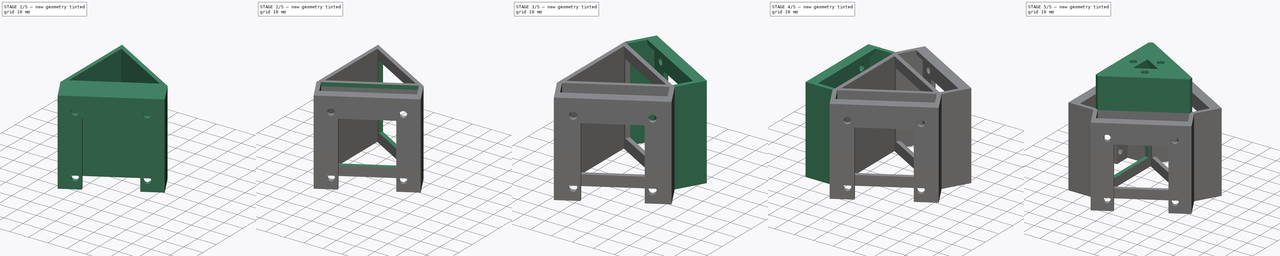
[diagram: build sequence overview — one tinted view per stage of 5, left to right]
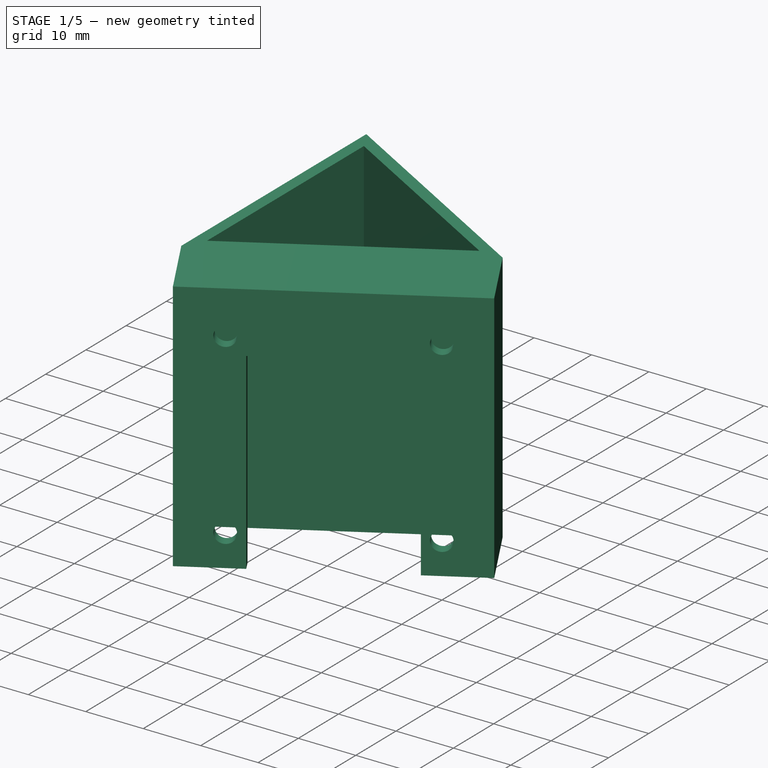
[diagram: stage 1 of 5 — iso view after this stage's code; geometry added in this stage tinted green]
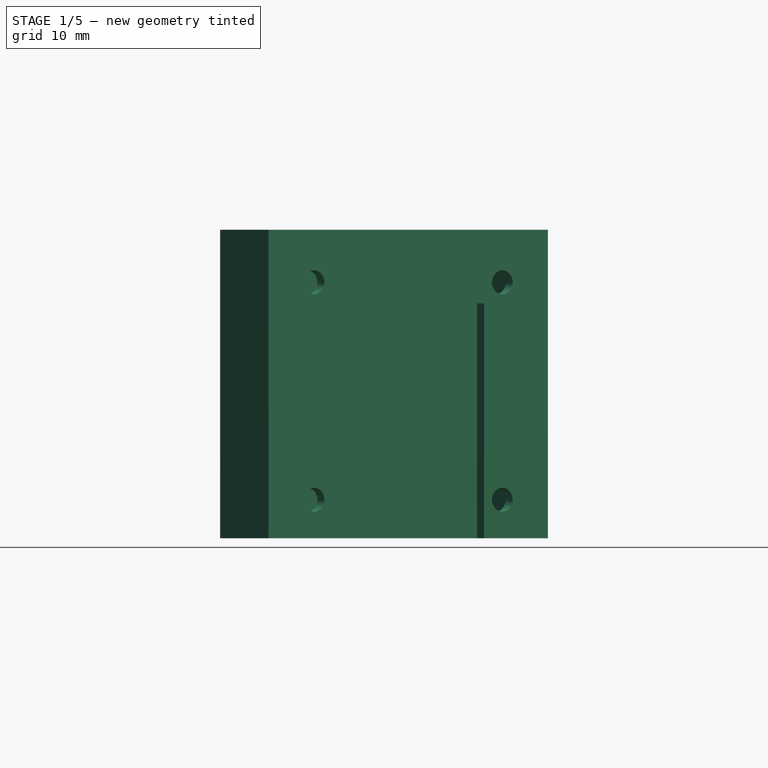
[diagram: stage 1 of 5 — front view after this stage's code; geometry added in this stage tinted green]
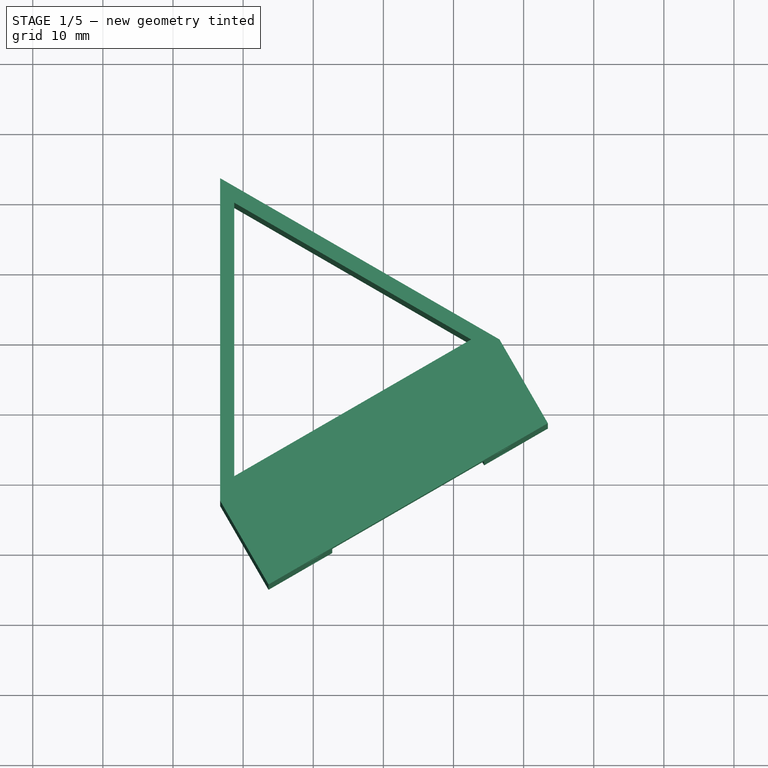
[diagram: stage 1 of 5 — top view after this stage's code; geometry added in this stage tinted green]
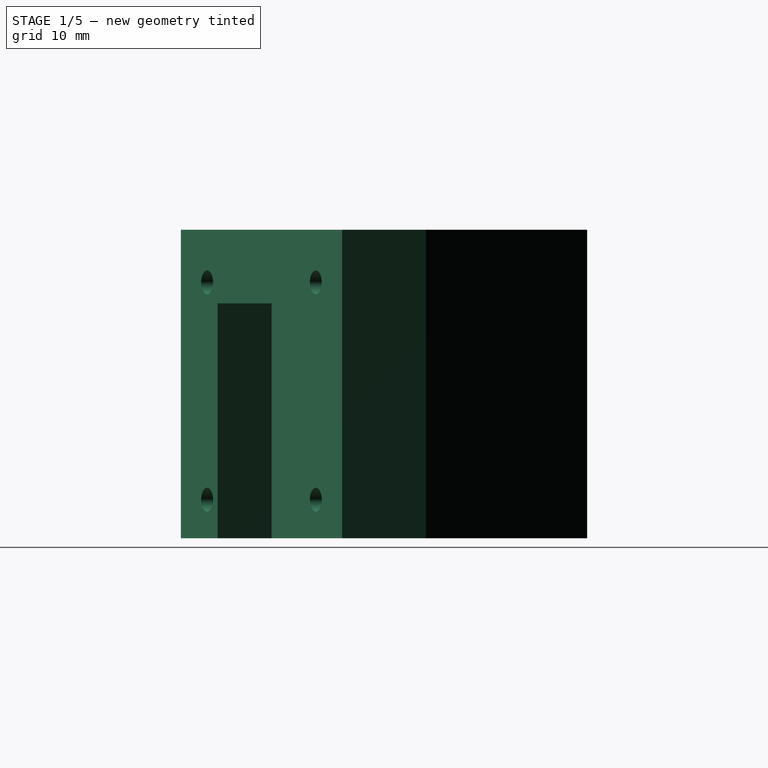
[diagram: stage 1 of 5 — right view after this stage's code; geometry added in this stage tinted green]
FCSTD DOCUMENT  (FreeCAD 0.19R)
Label: core1_3_motor_3
License: All rights reserved
LicenseURL: http://en.wikipedia.org/wiki/All_rights_reserved
objects: Sketcher::SketchObject×15, PartDesign::Pad×9, PartDesign::Pocket×6, PartDesign::Body×1
note: 46 computed .brp shape members not serialized (recipe doc carries the construction recipe); baked Part::Feature solids carry a one-line shape summary decoded from their .brp

FEATURE [Sketcher::SketchObject] Sketch
  FullyConstrained = true
  MapMode = 5
  Support = -> [XY_Plane]
  sketch-geometry (8):
    g0: LineSegment StartX=26.5581 StartY=0 StartZ=0 EndX=-13.2791 EndY=23 EndZ=0
    g1: LineSegment StartX=-13.2791 StartY=23 StartZ=0 EndX=-13.2791 EndY=-23 EndZ=0
    g2: LineSegment StartX=-13.2791 StartY=-23 StartZ=0 EndX=26.5581 EndY=0 EndZ=0
    g3: Circle CenterX=0 CenterY=0 CenterZ=0 NormalX=0 NormalY=0 NormalZ=1 AngleXU=0 Radius=26.5581
    g4: LineSegment StartX=22.5167 StartY=0 StartZ=0 EndX=-11.2583 EndY=19.5 EndZ=0
    g5: LineSegment StartX=-11.2583 StartY=19.5 StartZ=0 EndX=-11.2583 EndY=-19.5 EndZ=0
    g6: LineSegment StartX=-11.2583 StartY=-19.5 StartZ=0 EndX=22.5167 EndY=0 EndZ=0
    g7: Circle CenterX=0 CenterY=0 CenterZ=0 NormalX=0 NormalY=0 NormalZ=1 AngleXU=0 Radius=22.5167
  constraints (22):
    c: Coincident(g0,g1)
    c: Coincident(g1,g2)
    c: Coincident(g2,g0)
    c: Equal(g0,g1)
    c: Equal(g0,g2)
    c: PointOnObject(g0,g3)
    c: PointOnObject(g1,g3)
    c: PointOnObject(g2,g3)
    c: Coincident(g3,g-1)
    c: PointOnObject(g2,g-1)
    c: Distance(g0) = 46
    c: Coincident(g4,g5)
    c: Coincident(g5,g6)
    c: Coincident(g6,g4)
    c: Equal(g4,g5)
    c: Equal(g4,g6)
    c: PointOnObject(g4,g7)
    c: PointOnObject(g5,g7)
    c: PointOnObject(g6,g7)
    c: Coincident(g7,g-1)
    c: PointOnObject(g6,g-1)
    c: Distance(g4) = 39
FEATURE [PartDesign::Pad] Pad
  Direction = (1,1,1)
  Length = 44
  Length2 = 100
  Profile = -> Sketch
  Type = 0
FEATURE [Sketcher::SketchObject] Sketch001
  ExternalGeometry = -> [Pad]
  FullyConstrained = true
  MapMode = 5
  Placement = pos=(6.63953,-11.5,0) rot=(0.935113,0.250563,0.250563;1.63783rad)
  Support = -> [Pad]
  sketch-geometry (8):
    g0: LineSegment StartX=-23 StartY=-2e-16 StartZ=0 EndX=-21 EndY=-2e-16 EndZ=0
    g1: LineSegment StartX=23 StartY=-2e-16 StartZ=0 EndX=23 EndY=44 EndZ=0
    g2: LineSegment StartX=23 StartY=44 StartZ=0 EndX=-23 EndY=44 EndZ=0
    g3: LineSegment StartX=-23 StartY=44 StartZ=0 EndX=-23 EndY=0 EndZ=0
    g4: LineSegment StartX=-21 StartY=-2e-16 StartZ=0 EndX=-21 EndY=42 EndZ=0
    g5: LineSegment StartX=-21 StartY=42 StartZ=0 EndX=21 EndY=42 EndZ=0
    g6: LineSegment StartX=21 StartY=42 StartZ=0 EndX=21 EndY=0 EndZ=0
    g7: LineSegment StartX=21 StartY=0 StartZ=0 EndX=23 EndY=-2e-16 EndZ=0
  constraints (21):
    c: Coincident(g7,g1)
    c: Coincident(g1,g2)
    c: Coincident(g2,g3)
    c: Coincident(g3,g0)
    c: Horizontal(g0)
    c: Horizontal(g2)
    c: Vertical(g1)
    c: Vertical(g3)
    c: Coincident(g0,g-3)
    c: Coincident(g1,g-4)
    c: Vertical(g4)
    c: Coincident(g4,g5)
    c: Horizontal(g5)
    c: Coincident(g5,g6)
    c: Vertical(g6)
    c: Coincident(g0,g4)
    c: Coincident(g7,g6)
    c: Tangent(g0,g7)
    c: Distance(g0,g3) = 2
    c: Distance(g6,g1) = 2
    c: Distance(g5,g2) = 2
FEATURE [PartDesign::Pad] Pad001
  BaseFeature = -> Pad
  Direction = (1,1,1)
  Length = 11.8
  Length2 = 100
  Profile = -> Sketch001
  Type = 0
FEATURE [Sketcher::SketchObject] Sketch002
  ExternalGeometry = -> [Pad001]
  FullyConstrained = true
  MapMode = 5
  Placement = pos=(12.5395,-21.7191,0) rot=(0.935113,0.250563,0.250563;1.63783rad)
  Support = -> [Pad001]
  sketch-geometry (12):
    g0: LineSegment StartX=-23 StartY=0 StartZ=0 EndX=-12.5 EndY=0 EndZ=0
    g1: LineSegment StartX=23 StartY=0 StartZ=0 EndX=23 EndY=44 EndZ=0
    g2: LineSegment StartX=23 StartY=44 StartZ=0 EndX=-23 EndY=44 EndZ=0
    g3: LineSegment StartX=-23 StartY=44 StartZ=0 EndX=-23 EndY=0 EndZ=0
    g4: LineSegment StartX=-12.5 StartY=0 StartZ=0 EndX=-12.5 EndY=33.5 EndZ=0
    g5: LineSegment StartX=-12.5 StartY=33.5 StartZ=0 EndX=12.5 EndY=33.5 EndZ=0
    g6: LineSegment StartX=12.5 StartY=33.5 StartZ=0 EndX=12.5 EndY=0 EndZ=0
    g7: LineSegment StartX=12.5 StartY=0 StartZ=0 EndX=23 EndY=0 EndZ=0
    g8: Circle CenterX=-15.5 CenterY=36.5 CenterZ=0 NormalX=0 NormalY=0 NormalZ=1 AngleXU=0 Radius=1.7
    g9: Circle CenterX=-15.5 CenterY=5.5 CenterZ=0 NormalX=0 NormalY=0 NormalZ=1 AngleXU=0 Radius=1.7
    g10: Circle CenterX=15.5 CenterY=5.5 CenterZ=0 NormalX=0 NormalY=0 NormalZ=1 AngleXU=0 Radius=1.7
    g11: Circle CenterX=15.5 CenterY=36.5 CenterZ=0 NormalX=0 NormalY=0 NormalZ=1 AngleXU=0 Radius=1.7
  constraints (33):
    c: Coincident(g7,g1)
    c: Coincident(g1,g2)
    c: Coincident(g2,g3)
    c: Coincident(g3,g0)
    c: Horizontal(g0)
    c: Horizontal(g2)
    c: Vertical(g1)
    c: Vertical(g3)
    c: Coincident(g0,g-3)
    c: Coincident(g1,g-4)
    c: Vertical(g4)
    c: Coincident(g4,g5)
    c: Horizontal(g5)
    c: Coincident(g5,g6)
    c: Vertical(g6)
    c: Distance(g4,g3) = 10.5
    c: Distance(g6,g1) = 10.5
    c: Distance(g5,g2) = 10.5
    c: Coincident(g0,g4)
    c: Coincident(g7,g6)
    c: Tangent(g0,g7)
    c: Diameter(g8) = 3.4
    c: Diameter(g11) = 3.4
    c: Diameter(g10) = 3.4
    c: Diameter(g9) = 3.4
    c: Distance(g9,g0) = 5.5
    c: Distance(g9,g3) = 7.5
    c: Distance(g10,g7) = 5.5
    c: Distance(g10,g1) = 7.5
    c: Distance(g11,g1) = 7.5
    c: Distance(g11,g2) = 7.5
    c: Distance(g8,g2) = 7.5
    c: Distance(g8,g3) = 7.5
FEATURE [PartDesign::Pad] Pad002
  BaseFeature = -> Pad001
  Direction = (1,1,1)
  Length = 2
  Length2 = 100
  Profile = -> Sketch002
  Type = 0
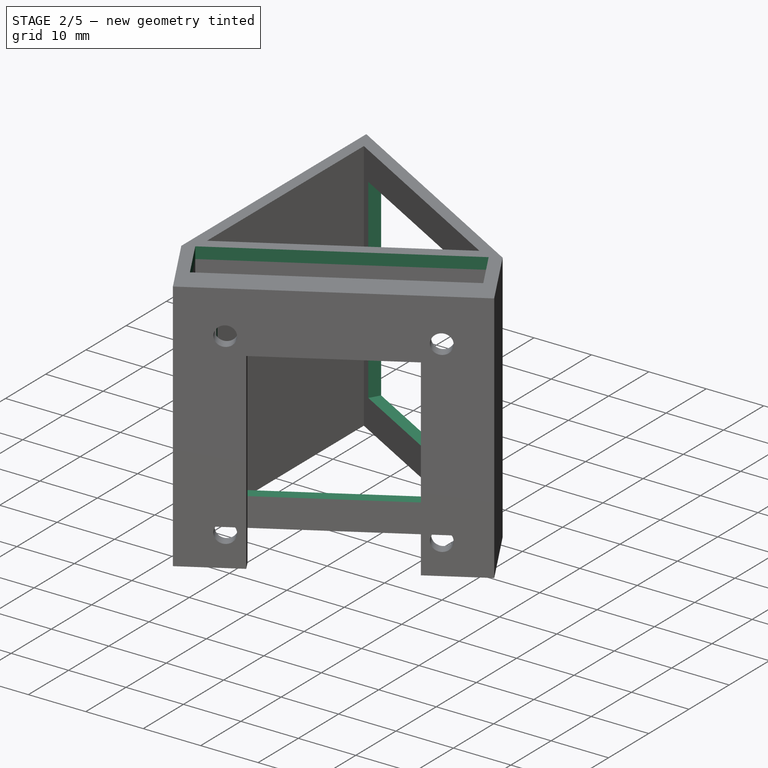
[diagram: stage 2 of 5 — iso view after this stage's code; geometry added in this stage tinted green]
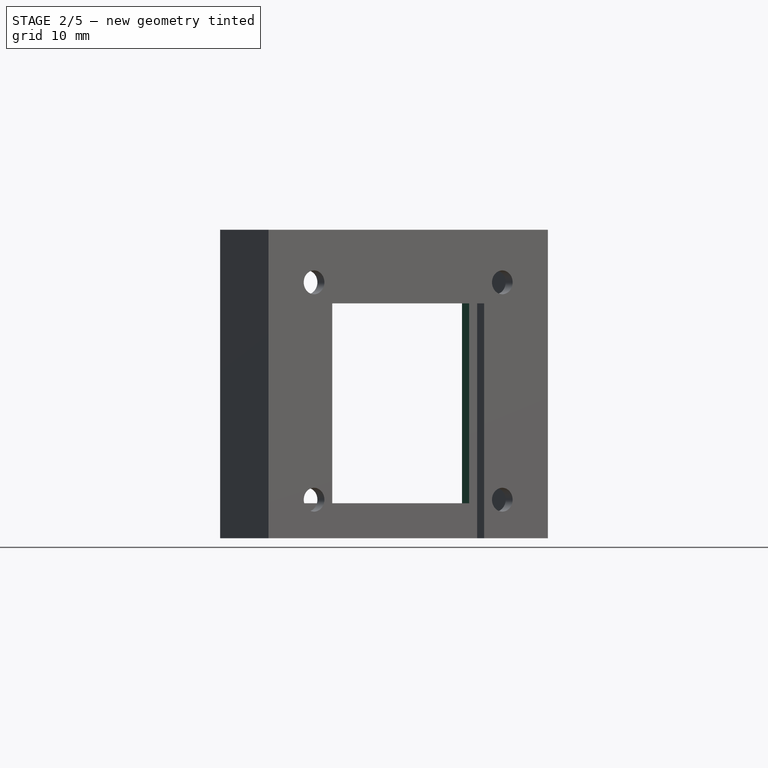
[diagram: stage 2 of 5 — front view after this stage's code; geometry added in this stage tinted green]
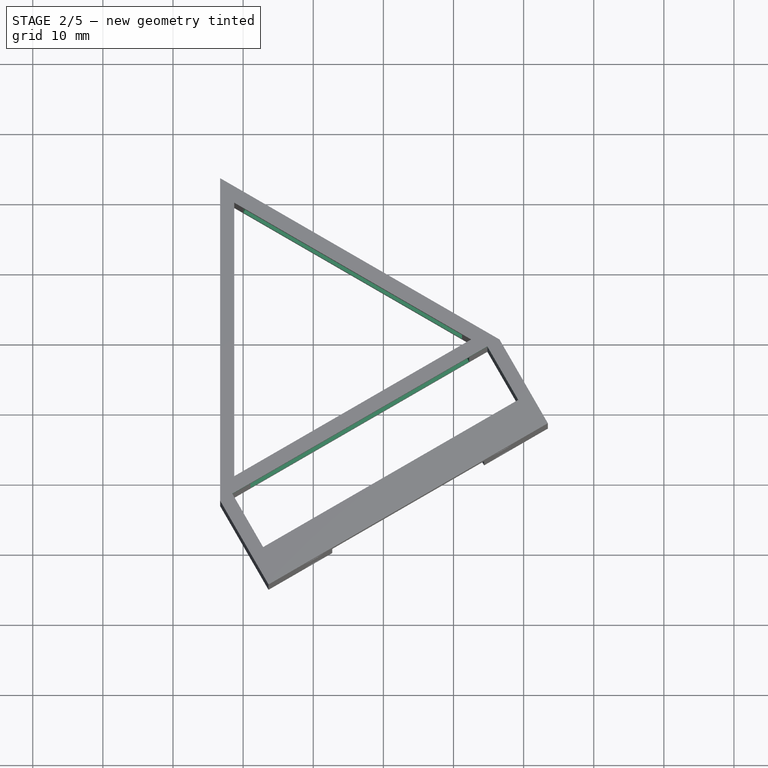
[diagram: stage 2 of 5 — top view after this stage's code; geometry added in this stage tinted green]
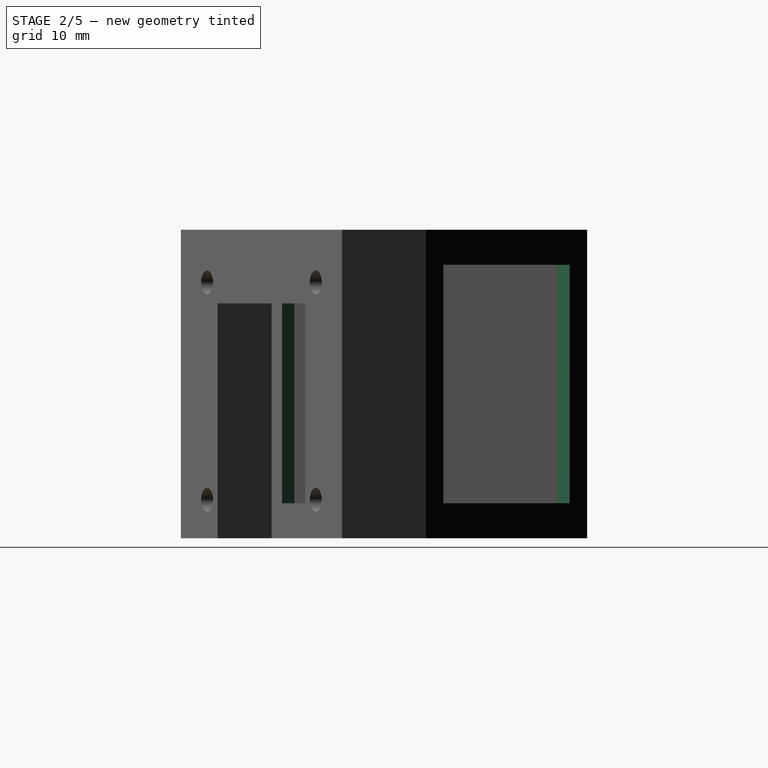
[diagram: stage 2 of 5 — right view after this stage's code; geometry added in this stage tinted green]
FEATURE [Sketcher::SketchObject] Sketch003
  ExternalGeometry = -> [Pad002]
  FullyConstrained = true
  MapMode = 5
  Placement = pos=(-4e-16,5.3e-15,44) rot=(0,0,1;0rad)
  Support = -> [Pad002]
  sketch-geometry (4):
    g0: LineSegment StartX=-11.547 StartY=-22 StartZ=0 EndX=-7.14701 EndY=-29.621 EndZ=0
    g1: LineSegment StartX=-7.14701 StartY=-29.621 StartZ=0 EndX=29.2261 EndY=-8.62102 EndZ=0
    g2: LineSegment StartX=29.2261 StartY=-8.62102 StartZ=0 EndX=24.8261 EndY=-1 EndZ=0
    g3: LineSegment StartX=24.8261 StartY=-1 StartZ=0 EndX=-11.547 EndY=-22 EndZ=0
  constraints (12):
    c: PointOnObject(g0,g-6)
    c: Coincident(g0,g1)
    c: Coincident(g1,g2)
    c: PointOnObject(g2,g-6)
    c: Coincident(g2,g3)
    c: Coincident(g3,g0)
    c: Parallel(g2,g-4)
    c: Parallel(g1,g-5)
    c: Parallel(g0,g-3)
    c: Distance(g2,g-6) = 2
    c: Distance(g0,g-6) = 2
    c: Distance(g2) = 8.8
FEATURE [PartDesign::Pocket] Pocket
  BaseFeature = -> Pad002
  Length = 5
  Length2 = 100
  Profile = -> Sketch003
  Type = 0
FEATURE [Sketcher::SketchObject] Sketch004
  ExternalGeometry = -> [Pocket]
  FullyConstrained = true
  MapMode = 5
  Placement = pos=(6.63953,-11.5,0) rot=(0.935113,0.250563,0.250563;1.63783rad)
  Support = -> [Pocket]
  sketch-geometry (4):
    g0: LineSegment StartX=-18 StartY=39 StartZ=0 EndX=18 EndY=39 EndZ=0
    g1: LineSegment StartX=18 StartY=39 StartZ=0 EndX=18 EndY=5 EndZ=0
    g2: LineSegment StartX=18 StartY=5 StartZ=0 EndX=-18 EndY=5 EndZ=0
    g3: LineSegment StartX=-18 StartY=5 StartZ=0 EndX=-18 EndY=39 EndZ=0
  constraints (12):
    c: Coincident(g0,g1)
    c: Coincident(g1,g2)
    c: Coincident(g2,g3)
    c: Coincident(g3,g0)
    c: Horizontal(g0)
    c: Horizontal(g2)
    c: Vertical(g1)
    c: Vertical(g3)
    c: Distance(g0,g-4) = 5
    c: Distance(g1,g-3) = 5
    c: Distance(g1,g-1) = 5
    c: Distance(g0,g-5) = 5
FEATURE [PartDesign::Pocket] Pocket001
  BaseFeature = -> Pocket
  Length = 3
  Length2 = 100
  Profile = -> Sketch004
  Type = 0
FEATURE [Sketcher::SketchObject] Sketch005
  ExternalGeometry = -> [Pocket001]
  FullyConstrained = true
  MapMode = 5
  Placement = pos=(6.63953,11.5,0) rot=(0.186157,0.694747,0.694747;2.77349rad)
  Support = -> [Pocket001]
  sketch-geometry (4):
    g0: LineSegment StartX=-18 StartY=39 StartZ=0 EndX=18 EndY=39 EndZ=0
    g1: LineSegment StartX=18 StartY=39 StartZ=0 EndX=18 EndY=5 EndZ=0
    g2: LineSegment StartX=18 StartY=5 StartZ=0 EndX=-18 EndY=5 EndZ=0
    g3: LineSegment StartX=-18 StartY=5 StartZ=0 EndX=-18 EndY=39 EndZ=0
  constraints (12):
    c: Coincident(g0,g1)
    c: Coincident(g1,g2)
    c: Coincident(g2,g3)
    c: Coincident(g3,g0)
    c: Horizontal(g0)
    c: Horizontal(g2)
    c: Vertical(g1)
    c: Vertical(g3)
    c: Distance(g0,g-4) = 5
    c: Distance(g0,g-3) = 5
    c: Distance(g1,g-5) = 5
    c: Distance(g1,g-1) = 5
FEATURE [PartDesign::Pocket] Pocket002
  BaseFeature = -> Pocket001
  Length = 4
  Length2 = 100
  Profile = -> Sketch005
  Type = 0
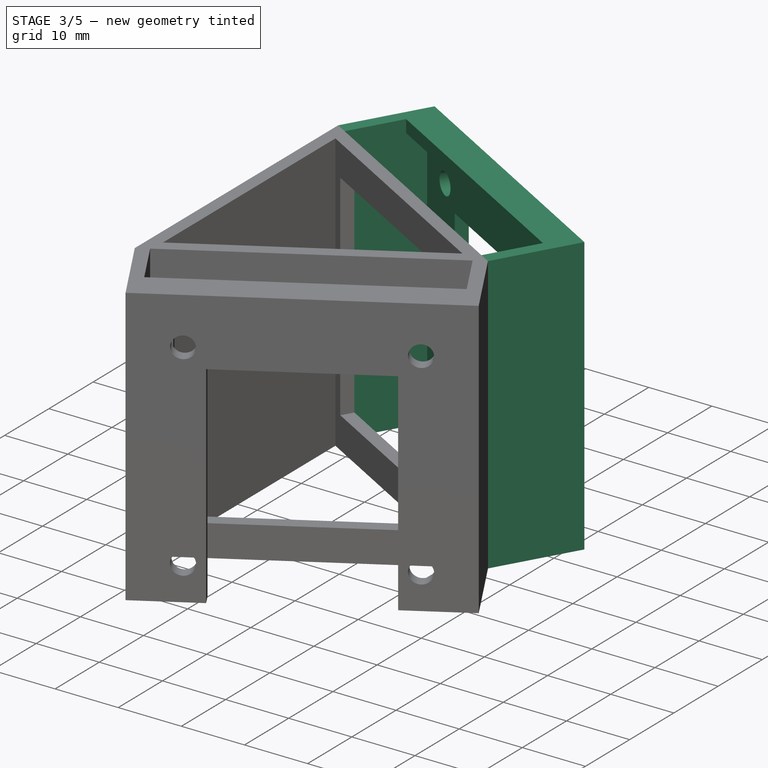
[diagram: stage 3 of 5 — iso view after this stage's code; geometry added in this stage tinted green]
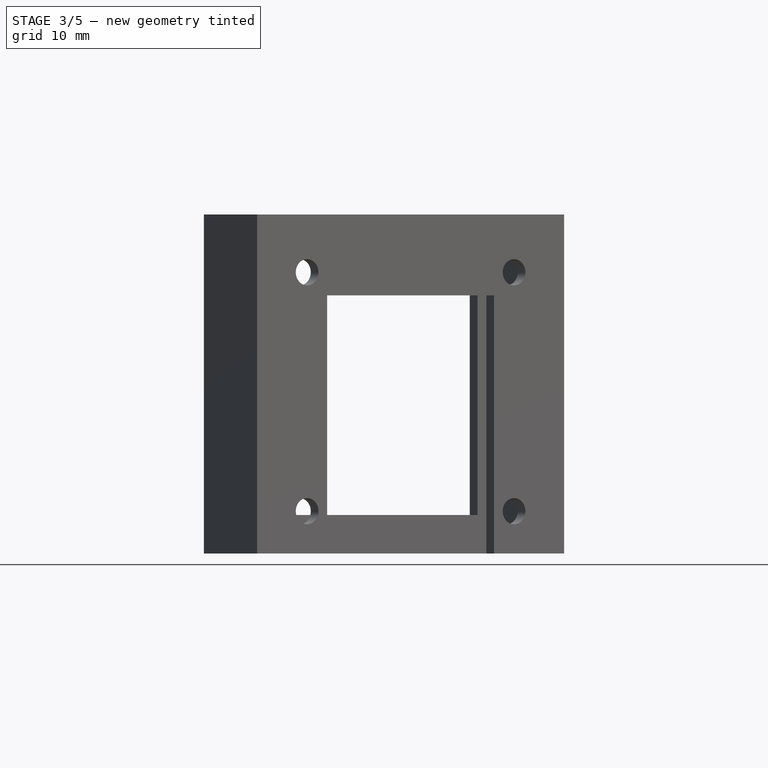
[diagram: stage 3 of 5 — front view after this stage's code; geometry added in this stage tinted green]
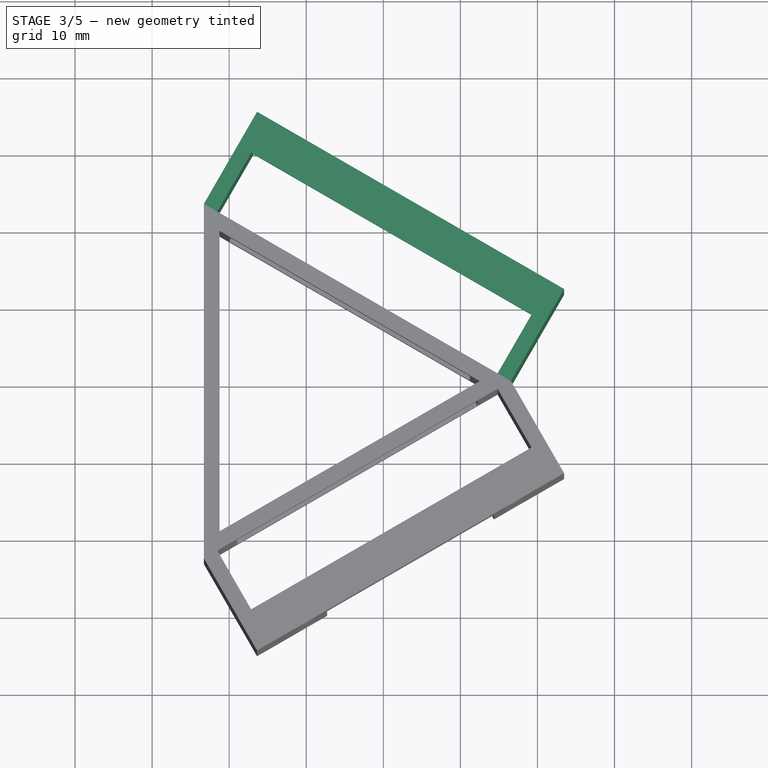
[diagram: stage 3 of 5 — top view after this stage's code; geometry added in this stage tinted green]
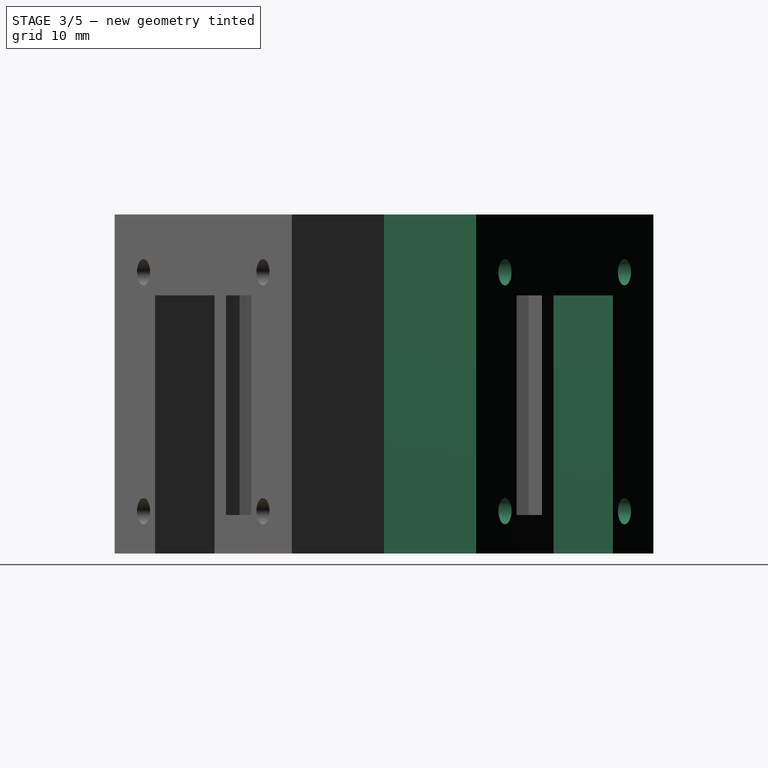
[diagram: stage 3 of 5 — right view after this stage's code; geometry added in this stage tinted green]
FEATURE [Sketcher::SketchObject] Sketch006
  ExternalGeometry = -> [Pocket002]
  FullyConstrained = true
  MapMode = 5
  Placement = pos=(6.63953,11.5,0) rot=(0.186157,0.694747,0.694747;2.77349rad)
  Support = -> [Pocket002]
  sketch-geometry (8):
    g0: LineSegment StartX=-23 StartY=44 StartZ=0 EndX=23 EndY=44 EndZ=0
    g1: LineSegment StartX=23 StartY=44 StartZ=0 EndX=23 EndY=0 EndZ=0
    g2: LineSegment StartX=23 StartY=0 StartZ=0 EndX=21 EndY=0 EndZ=0
    g3: LineSegment StartX=-23 StartY=0 StartZ=0 EndX=-23 EndY=44 EndZ=0
    g4: LineSegment StartX=-21 StartY=0 StartZ=0 EndX=-21 EndY=42 EndZ=0
    g5: LineSegment StartX=-21 StartY=42 StartZ=0 EndX=21 EndY=42 EndZ=0
    g6: LineSegment StartX=21 StartY=42 StartZ=0 EndX=21 EndY=0 EndZ=0
    g7: LineSegment StartX=-21 StartY=0 StartZ=0 EndX=-23 EndY=0 EndZ=0
  constraints (21):
    c: Coincident(g0,g1)
    c: Coincident(g1,g2)
    c: Coincident(g7,g3)
    c: Coincident(g3,g0)
    c: Horizontal(g0)
    c: Horizontal(g2)
    c: Vertical(g1)
    c: Vertical(g3)
    c: Coincident(g0,g-4)
    c: Coincident(g1,g-5)
    c: Vertical(g4)
    c: Coincident(g4,g5)
    c: Horizontal(g5)
    c: Coincident(g5,g6)
    c: Vertical(g6)
    c: Coincident(g2,g6)
    c: Coincident(g7,g4)
    c: Tangent(g2,g7)
    c: Distance(g3,g4) = 2
    c: Distance(g4,g0) = 2
    c: Distance(g2,g1) = 2
FEATURE [PartDesign::Pad] Pad003
  BaseFeature = -> Pocket002
  Direction = (1,1,1)
  Length = 11.8
  Length2 = 100
  Profile = -> Sketch006
  Type = 0
FEATURE [Sketcher::SketchObject] Sketch007
  ExternalGeometry = -> [Pad003]
  FullyConstrained = true
  MapMode = 5
  Placement = pos=(12.5395,21.7191,0) rot=(0.186157,0.694747,0.694747;2.77349rad)
  Support = -> [Pad003]
  sketch-geometry (12):
    g0: LineSegment StartX=-23 StartY=0 StartZ=0 EndX=-12.5 EndY=0 EndZ=0
    g1: LineSegment StartX=23 StartY=0 StartZ=0 EndX=23 EndY=44 EndZ=0
    g2: LineSegment StartX=23 StartY=44 StartZ=0 EndX=-23 EndY=44 EndZ=0
    g3: LineSegment StartX=-23 StartY=44 StartZ=0 EndX=-23 EndY=0 EndZ=0
    g4: LineSegment StartX=-12.5 StartY=0 StartZ=0 EndX=-12.5 EndY=33.5 EndZ=0
    g5: LineSegment StartX=-12.5 StartY=33.5 StartZ=0 EndX=12.5 EndY=33.5 EndZ=0
    g6: LineSegment StartX=12.5 StartY=33.5 StartZ=0 EndX=12.5 EndY=0 EndZ=0
    g7: Circle CenterX=-15.5 CenterY=36.5 CenterZ=0 NormalX=0 NormalY=0 NormalZ=1 AngleXU=0 Radius=1.7
    g8: Circle CenterX=15.5 CenterY=36.5 CenterZ=0 NormalX=0 NormalY=0 NormalZ=1 AngleXU=0 Radius=1.7
    g9: Circle CenterX=15.5 CenterY=5.5 CenterZ=0 NormalX=0 NormalY=0 NormalZ=1 AngleXU=0 Radius=1.7
    g10: Circle CenterX=-15.5 CenterY=5.5 CenterZ=0 NormalX=0 NormalY=0 NormalZ=1 AngleXU=0 Radius=1.7
    g11: LineSegment StartX=12.5 StartY=0 StartZ=0 EndX=23 EndY=0 EndZ=0
  constraints (33):
    c: Coincident(g11,g1)
    c: Coincident(g1,g2)
    c: Coincident(g2,g3)
    c: Coincident(g3,g0)
    c: Horizontal(g0)
    c: Horizontal(g2)
    c: Vertical(g1)
    c: Vertical(g3)
    c: Coincident(g0,g-4)
    c: Coincident(g1,g-5)
    c: Vertical(g4)
    c: Coincident(g4,g5)
    c: Horizontal(g5)
    c: Coincident(g5,g6)
    c: Vertical(g6)
    c: Distance(g4,g3) = 10.5
    c: Distance(g6,g1) = 10.5
    c: Distance(g5,g2) = 10.5
    c: Diameter(g7) = 3.4
    c: Diameter(g8) = 3.4
    c: Diameter(g9) = 3.4
    c: Diameter(g10) = 3.4
    c: Distance(g7,g2) = 7.5
    c: Distance(g7,g3) = 7.5
    c: Distance(g10,g0) = 5.5
    c: Distance(g10,g3) = 7.5
    c: Distance(g9,g0) = 5.5
    c: Distance(g9,g1) = 7.5
    c: Distance(g8,g1) = 7.5
    c: Distance(g8,g2) = 7.5
    c: Coincident(g0,g4)
    c: Coincident(g11,g6)
    c: Tangent(g0,g11)
FEATURE [PartDesign::Pad] Pad004
  BaseFeature = -> Pad003
  Direction = (1,1,1)
  Length = 2
  Length2 = 100
  Profile = -> Sketch007
  Type = 0
FEATURE [Sketcher::SketchObject] Sketch008
  ExternalGeometry = -> [Pad004]
  FullyConstrained = true
  MapMode = 5
  Placement = pos=(0,0,44) rot=(0,0,1;0rad)
  Support = -> [Pad004]
  sketch-geometry (4):
    g0: LineSegment StartX=-11.547 StartY=22 StartZ=0 EndX=-7.14701 EndY=29.621 EndZ=0
    g1: LineSegment StartX=-7.14701 StartY=29.621 StartZ=0 EndX=29.2261 EndY=8.62102 EndZ=0
    g2: LineSegment StartX=29.2261 StartY=8.62102 StartZ=0 EndX=24.8261 EndY=1 EndZ=0
    g3: LineSegment StartX=24.8261 StartY=1 StartZ=0 EndX=-11.547 EndY=22 EndZ=0
  constraints (12):
    c: PointOnObject(g0,g-3)
    c: Coincident(g0,g1)
    c: Coincident(g1,g2)
    c: PointOnObject(g2,g-3)
    c: Coincident(g2,g3)
    c: Coincident(g3,g0)
    c: Parallel(g0,g-4)
    c: Parallel(g1,g-5)
    c: Parallel(g2,g-6)
    c: Distance(g0,g-4) = 2
    c: Distance(g0,g-5) = 3
    c: Distance(g2,g-6) = 2
FEATURE [PartDesign::Pocket] Pocket003
  BaseFeature = -> Pad004
  Length = 2
  Length2 = 100
  Profile = -> Sketch008
  Type = 0
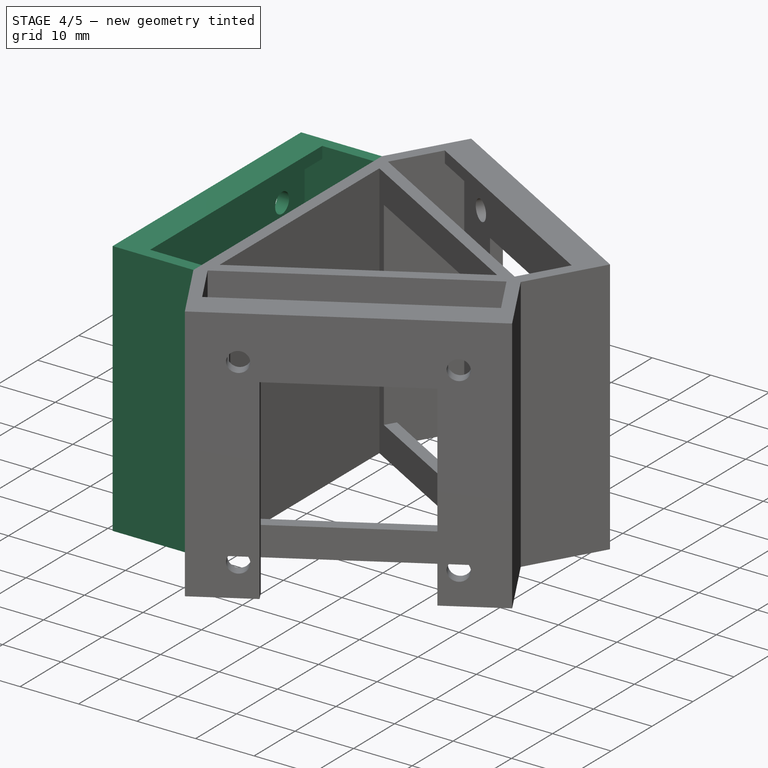
[diagram: stage 4 of 5 — iso view after this stage's code; geometry added in this stage tinted green]
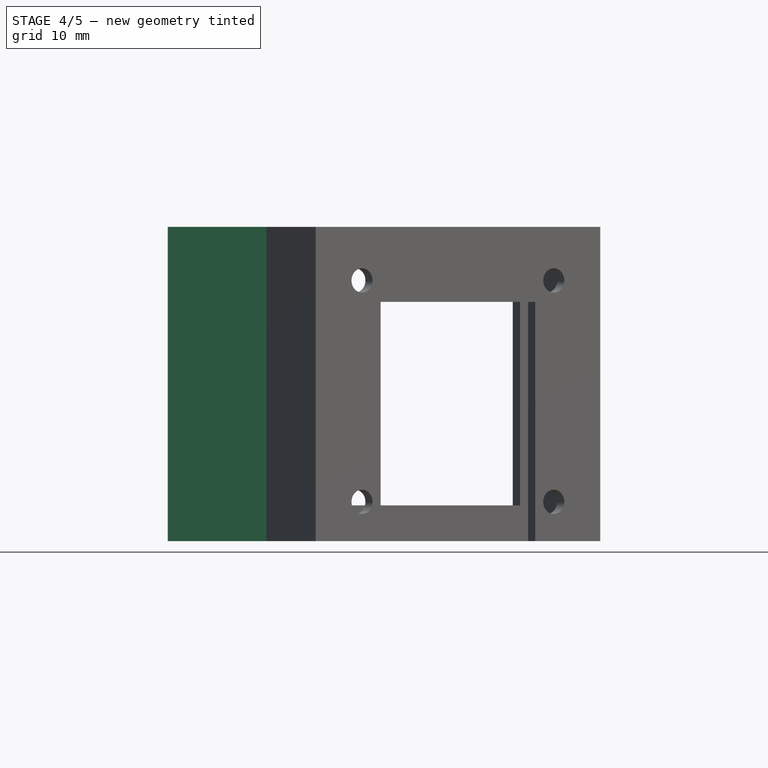
[diagram: stage 4 of 5 — front view after this stage's code; geometry added in this stage tinted green]
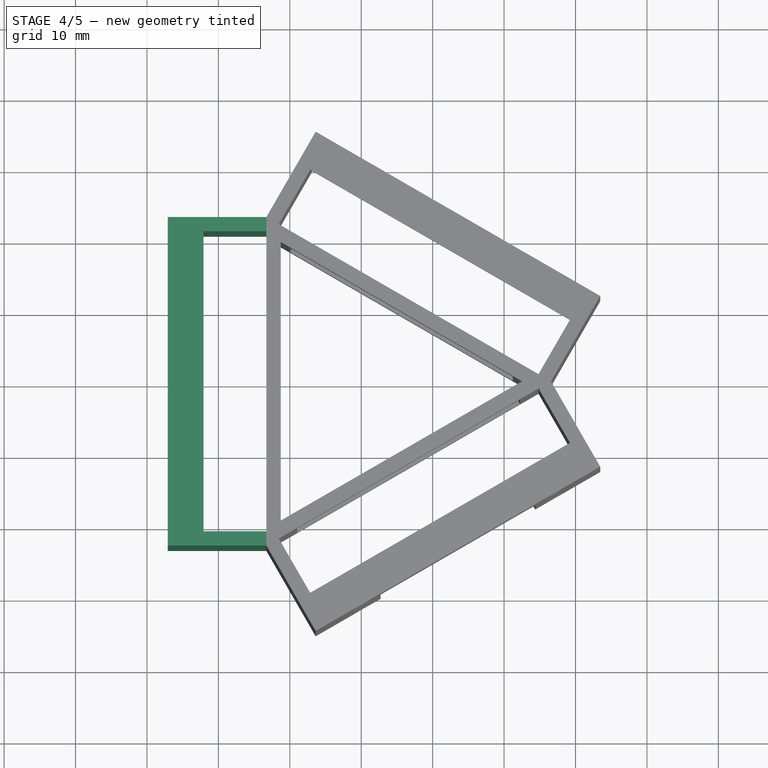
[diagram: stage 4 of 5 — top view after this stage's code; geometry added in this stage tinted green]
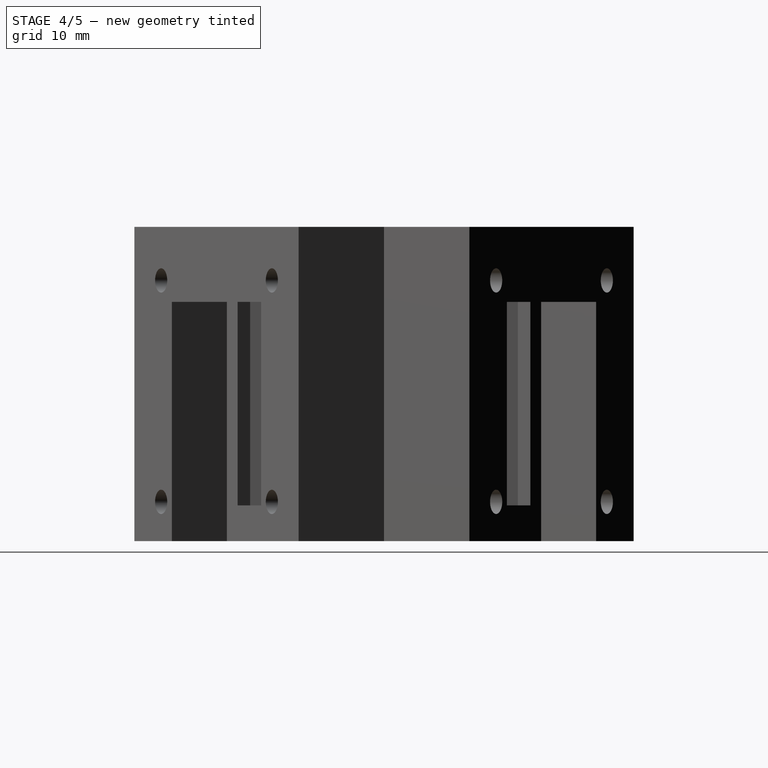
[diagram: stage 4 of 5 — right view after this stage's code; geometry added in this stage tinted green]
FEATURE [Sketcher::SketchObject] Sketch009
  ExternalGeometry = -> [Pocket003]
  FullyConstrained = true
  MapMode = 5
  Placement = pos=(-13.2791,-1.02666e-11,0) rot=(0.57735,-0.57735,-0.57735;2.0944rad)
  Support = -> [Pocket003]
  sketch-geometry (8):
    g0: LineSegment StartX=-23 StartY=0 StartZ=0 EndX=-21 EndY=0 EndZ=0
    g1: LineSegment StartX=23 StartY=0 StartZ=0 EndX=23 EndY=44 EndZ=0
    g2: LineSegment StartX=23 StartY=44 StartZ=0 EndX=-23 EndY=44 EndZ=0
    g3: LineSegment StartX=-23 StartY=44 StartZ=0 EndX=-23 EndY=0 EndZ=0
    g4: LineSegment StartX=-21 StartY=0 StartZ=0 EndX=-21 EndY=42 EndZ=0
    g5: LineSegment StartX=-21 StartY=42 StartZ=0 EndX=21 EndY=42 EndZ=0
    g6: LineSegment StartX=21 StartY=42 StartZ=0 EndX=21 EndY=0 EndZ=0
    g7: LineSegment StartX=21 StartY=0 StartZ=0 EndX=23 EndY=0 EndZ=0
  constraints (21):
    c: Coincident(g7,g1)
    c: Coincident(g1,g2)
    c: Coincident(g2,g3)
    c: Coincident(g3,g0)
    c: Horizontal(g0)
    c: Horizontal(g2)
    c: Vertical(g1)
    c: Vertical(g3)
    c: Coincident(g0,g-3)
    c: Coincident(g1,g-5)
    c: Vertical(g4)
    c: Coincident(g4,g5)
    c: Horizontal(g5)
    c: Coincident(g5,g6)
    c: Vertical(g6)
    c: Coincident(g0,g4)
    c: Coincident(g7,g6)
    c: Tangent(g0,g7)
    c: Distance(g0,g3) = 2
    c: Distance(g4,g2) = 2
    c: Distance(g6,g1) = 2
FEATURE [PartDesign::Pad] Pad005
  BaseFeature = -> Pocket003
  Direction = (1,1,1)
  Length = 11.8
  Length2 = 100
  Profile = -> Sketch009
  Type = 0
FEATURE [Sketcher::SketchObject] Sketch010
  ExternalGeometry = -> [Pad005]
  FullyConstrained = true
  MapMode = 5
  Placement = pos=(-25.0791,-1.93901e-11,0) rot=(0.57735,-0.57735,-0.57735;2.0944rad)
  Support = -> [Pad005]
  sketch-geometry (12):
    g0: LineSegment StartX=-23 StartY=0 StartZ=0 EndX=-12.5 EndY=0 EndZ=0
    g1: LineSegment StartX=23 StartY=0 StartZ=0 EndX=23 EndY=44 EndZ=0
    g2: LineSegment StartX=23 StartY=44 StartZ=0 EndX=-23 EndY=44 EndZ=0
    g3: LineSegment StartX=-23 StartY=44 StartZ=0 EndX=-23 EndY=0 EndZ=0
    g4: LineSegment StartX=-12.5 StartY=0 StartZ=0 EndX=-12.5 EndY=33.5 EndZ=0
    g5: LineSegment StartX=-12.5 StartY=33.5 StartZ=0 EndX=12.5 EndY=33.5 EndZ=0
    g6: LineSegment StartX=12.5 StartY=33.5 StartZ=0 EndX=12.5 EndY=0 EndZ=0
    g7: LineSegment StartX=12.5 StartY=0 StartZ=0 EndX=23 EndY=0 EndZ=0
    g8: Circle CenterX=-15.5 CenterY=5.5 CenterZ=0 NormalX=0 NormalY=0 NormalZ=1 AngleXU=0 Radius=1.7
    g9: Circle CenterX=-15.5 CenterY=36.5 CenterZ=0 NormalX=0 NormalY=0 NormalZ=1 AngleXU=0 Radius=1.7
    g10: Circle CenterX=15.5 CenterY=36.5 CenterZ=0 NormalX=0 NormalY=0 NormalZ=1 AngleXU=0 Radius=1.7
    g11: Circle CenterX=15.5 CenterY=5.5 CenterZ=0 NormalX=0 NormalY=0 NormalZ=1 AngleXU=0 Radius=1.7
  constraints (33):
    c: Coincident(g7,g1)
    c: Coincident(g1,g2)
    c: Coincident(g2,g3)
    c: Coincident(g3,g0)
    c: Horizontal(g0)
    c: Horizontal(g2)
    c: Vertical(g1)
    c: Vertical(g3)
    c: Coincident(g0,g-3)
    c: Coincident(g1,g-5)
    c: Vertical(g4)
    c: Coincident(g4,g5)
    c: Horizontal(g5)
    c: Coincident(g5,g6)
    c: Vertical(g6)
    c: Coincident(g0,g4)
    c: Coincident(g7,g6)
    c: Tangent(g0,g7)
    c: Distance(g0,g3) = 10.5
    c: Distance(g6,g1) = 10.5
    c: Distance(g5,g2) = 10.5
    c: Diameter(g9) = 3.4
    c: Diameter(g8) = 3.4
    c: Diameter(g11) = 3.4
    c: Diameter(g10) = 3.4
    c: Distance(g8,g0) = 5.5
    c: Distance(g11,g7) = 5.5
    c: Distance(g11,g1) = 7.5
    c: Distance(g10,g1) = 7.5
    c: Distance(g10,g2) = 7.5
    c: Distance(g9,g2) = 7.5
    c: Distance(g9,g3) = 7.5
    c: Distance(g8,g3) = 7.5
FEATURE [PartDesign::Pad] Pad006
  BaseFeature = -> Pad005
  Direction = (1,1,1)
  Length = 2
  Length2 = 100
  Profile = -> Sketch010
  Type = 0
FEATURE [Sketcher::SketchObject] Sketch011
  ExternalGeometry = -> [Pad006]
  FullyConstrained = true
  MapMode = 5
  Placement = pos=(0,0,44) rot=(0,0,1;0rad)
  Support = -> [Pad006]
  sketch-geometry (4):
    g0: LineSegment StartX=-13.2791 StartY=-21 StartZ=0 EndX=-22.0791 EndY=-21 EndZ=0
    g1: LineSegment StartX=-22.0791 StartY=-21 StartZ=0 EndX=-22.0791 EndY=21 EndZ=0
    g2: LineSegment StartX=-22.0791 StartY=21 StartZ=0 EndX=-13.2791 EndY=21 EndZ=0
    g3: LineSegment StartX=-13.2791 StartY=-21 StartZ=0 EndX=-13.2791 EndY=21 EndZ=0
  constraints (12):
    c: PointOnObject(g0,g-4)
    c: Horizontal(g0)
    c: Coincident(g0,g1)
    c: Vertical(g1)
    c: Coincident(g1,g2)
    c: PointOnObject(g2,g-4)
    c: Horizontal(g2)
    c: Distance(g2,g-3) = 2
    c: Distance(g0,g-6) = 2
    c: Distance(g0,g-5) = 3
    c: Coincident(g3,g0)
    c: Coincident(g3,g2)
FEATURE [PartDesign::Pocket] Pocket004
  BaseFeature = -> Pad006
  Length = 2
  Length2 = 100
  Profile = -> Sketch011
  Type = 0
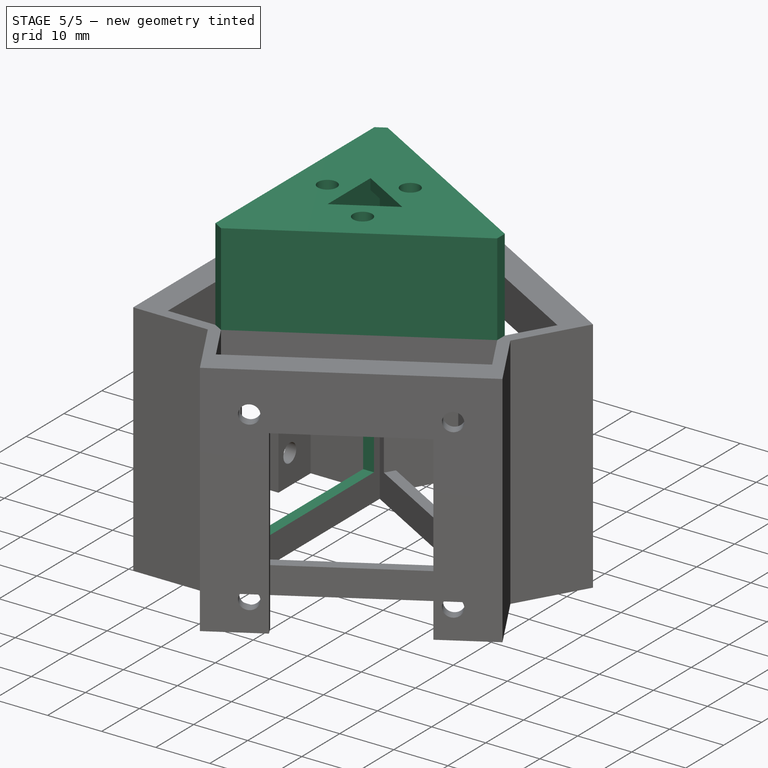
[diagram: stage 5 of 5 — iso view after this stage's code; geometry added in this stage tinted green]
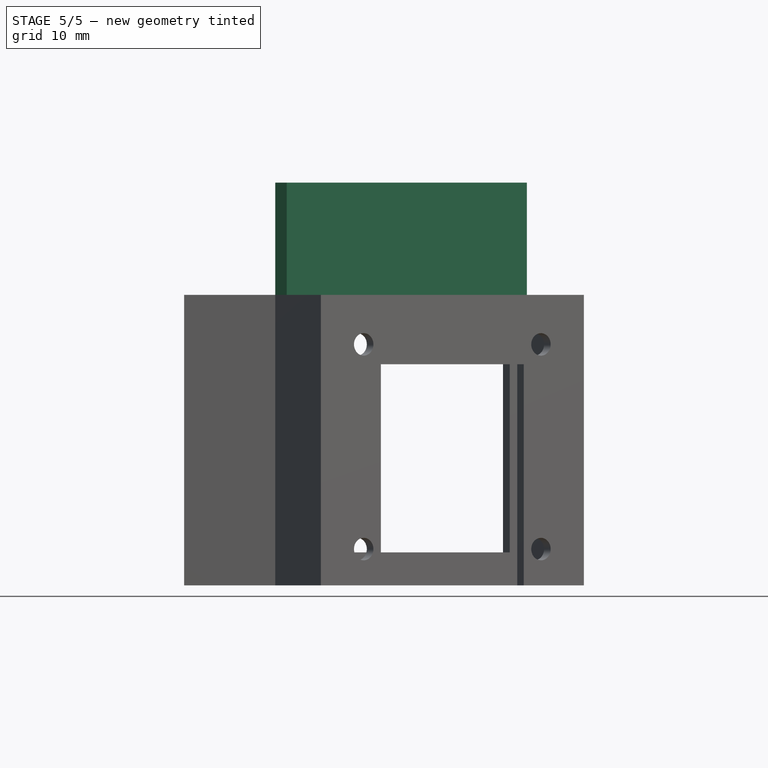
[diagram: stage 5 of 5 — front view after this stage's code; geometry added in this stage tinted green]
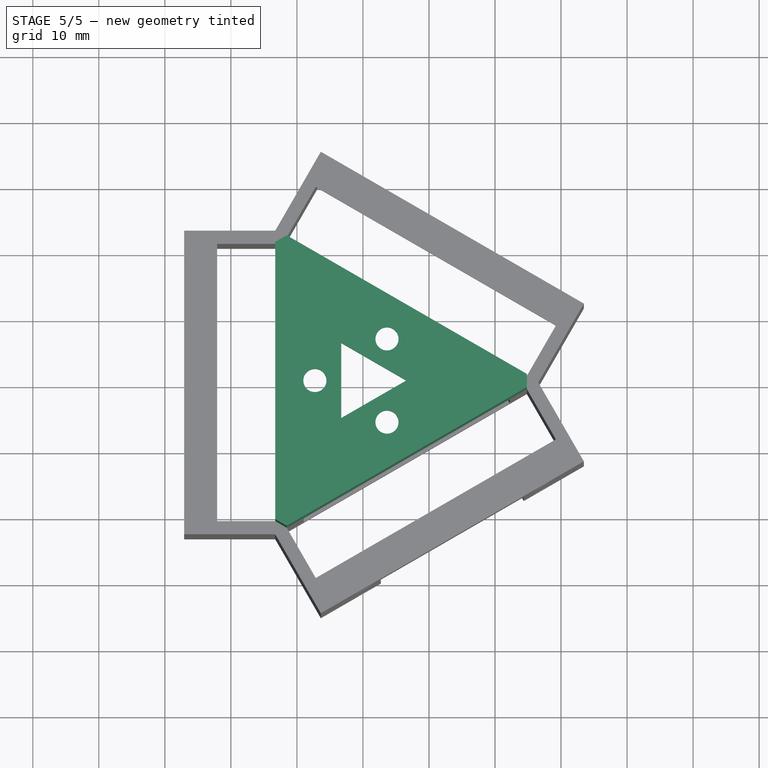
[diagram: stage 5 of 5 — top view after this stage's code; geometry added in this stage tinted green]
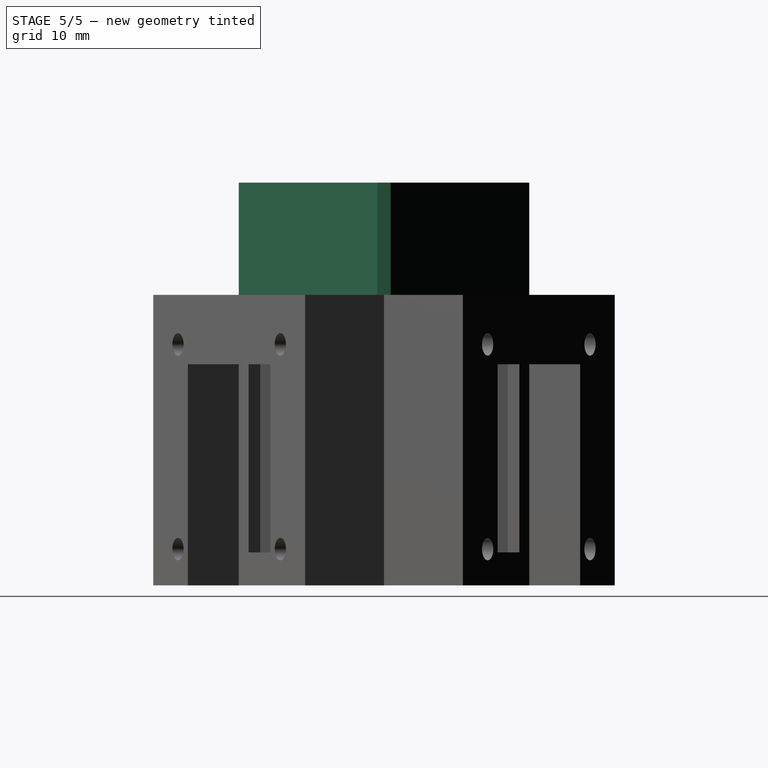
[diagram: stage 5 of 5 — right view after this stage's code; geometry added in this stage tinted green]
FEATURE [Sketcher::SketchObject] Sketch012
  ExternalGeometry = -> [Pocket004]
  FullyConstrained = true
  MapMode = 5
  Placement = pos=(-13.2791,-1.02666e-11,0) rot=(0.57735,-0.57735,-0.57735;2.0944rad)
  Support = -> [Pocket004]
  sketch-geometry (4):
    g0: LineSegment StartX=-18 StartY=39 StartZ=0 EndX=18 EndY=39 EndZ=0
    g1: LineSegment StartX=18 StartY=39 StartZ=0 EndX=18 EndY=5 EndZ=0
    g2: LineSegment StartX=18 StartY=5 StartZ=0 EndX=-18 EndY=5 EndZ=0
    g3: LineSegment StartX=-18 StartY=5 StartZ=0 EndX=-18 EndY=39 EndZ=0
  constraints (12):
    c: Coincident(g0,g1)
    c: Coincident(g1,g2)
    c: Coincident(g2,g3)
    c: Coincident(g3,g0)
    c: Horizontal(g0)
    c: Horizontal(g2)
    c: Vertical(g1)
    c: Vertical(g3)
    c: Distance(g0,g-3) = 5
    c: Distance(g0,g-5) = 5
    c: Distance(g1,g-4) = 5
    c: Distance(g1,g-1) = 5
FEATURE [PartDesign::Pocket] Pocket005
  BaseFeature = -> Pocket004
  Length = 3
  Length2 = 100
  Profile = -> Sketch012
  Type = 0
FEATURE [Sketcher::SketchObject] Sketch013
  ExternalGeometry = -> [Pocket005]
  FullyConstrained = true
  MapMode = 5
  Placement = pos=(0,0,44) rot=(0,0,1;0rad)
  Support = -> [Pocket005]
  sketch-geometry (9):
    g0: LineSegment StartX=-13.2791 StartY=21 StartZ=0 EndX=-11.547 EndY=22 EndZ=0
    g1: LineSegment StartX=-11.547 StartY=22 StartZ=0 EndX=24.8261 EndY=1 EndZ=0
    g2: LineSegment StartX=24.8261 StartY=1 StartZ=0 EndX=24.8261 EndY=-1 EndZ=0
    g3: LineSegment StartX=24.8261 StartY=-1 StartZ=0 EndX=-11.547 EndY=-22 EndZ=0
    g4: LineSegment StartX=-11.547 StartY=-22 StartZ=0 EndX=-13.2791 EndY=-21 EndZ=0
    g5: LineSegment StartX=-13.2791 StartY=-21 StartZ=0 EndX=-13.2791 EndY=21 EndZ=0
    g6: LineSegment StartX=-11.2583 StartY=19.5 StartZ=0 EndX=22.5167 EndY=0 EndZ=0
    g7: LineSegment StartX=22.5167 StartY=0 StartZ=0 EndX=-11.2583 EndY=-19.5 EndZ=0
    g8: LineSegment StartX=-11.2583 StartY=-19.5 StartZ=0 EndX=-11.2583 EndY=19.5 EndZ=0
  constraints (18):
    c: Coincident(g-5,g0)
    c: Coincident(g0,g-3)
    c: Coincident(g0,g1)
    c: Coincident(g1,g-3)
    c: Coincident(g1,g2)
    c: Coincident(g2,g-4)
    c: Coincident(g2,g3)
    c: Coincident(g3,g-4)
    c: Coincident(g3,g4)
    c: Coincident(g4,g-5)
    c: Coincident(g4,g5)
    c: Coincident(g5,g0)
    c: Coincident(g-7,g6)
    c: Coincident(g6,g-8)
    c: Coincident(g6,g7)
    c: Coincident(g7,g-8)
    c: Coincident(g7,g8)
    c: Coincident(g8,g6)
FEATURE [PartDesign::Pad] Pad007
  BaseFeature = -> Pocket005
  Direction = (1,1,1)
  Length = 15
  Length2 = 100
  Profile = -> Sketch013
  Type = 0
FEATURE [Sketcher::SketchObject] Sketch014
  ExternalGeometry = -> [Pad007]
  FullyConstrained = true
  MapMode = 5
  Placement = pos=(0,0,59) rot=(0,0,1;0rad)
  Support = -> [Pad007]
  sketch-geometry (17):
    g0: LineSegment StartX=-13.2791 StartY=21 StartZ=0 EndX=-11.547 EndY=22 EndZ=0
    g1: LineSegment StartX=-11.547 StartY=22 StartZ=0 EndX=24.8261 EndY=1 EndZ=0
    g2: LineSegment StartX=24.8261 StartY=1 StartZ=0 EndX=24.8261 EndY=-1 EndZ=0
    g3: LineSegment StartX=24.8261 StartY=-1 StartZ=0 EndX=-11.547 EndY=-22 EndZ=0
    g4: LineSegment StartX=-11.547 StartY=-22 StartZ=0 EndX=-13.2791 EndY=-21 EndZ=0
    g5: LineSegment StartX=-13.2791 StartY=-21 StartZ=0 EndX=-13.2791 EndY=21 EndZ=0
    g6: LineSegment StartX=6.55811 StartY=0 StartZ=0 EndX=-3.27906 EndY=5.67949 EndZ=0
    g7: LineSegment StartX=-3.27906 StartY=5.67949 StartZ=0 EndX=-3.27906 EndY=-5.67949 EndZ=0
    g8: LineSegment StartX=-3.27906 StartY=-5.67949 StartZ=0 EndX=6.55811 EndY=0 EndZ=0
    g9: Circle CenterX=0 CenterY=0 CenterZ=0 NormalX=0 NormalY=0 NormalZ=1 AngleXU=0 Radius=6.55811
    g10: LineSegment StartX=-7.27906 StartY=0 StartZ=0 EndX=3.63953 EndY=-6.30385 EndZ=0
    g11: LineSegment StartX=3.63953 StartY=-6.30385 StartZ=0 EndX=3.63953 EndY=6.30385 EndZ=0
    g12: LineSegment StartX=3.63953 StartY=6.30385 StartZ=0 EndX=-7.27906 EndY=0 EndZ=0
    g13: Circle CenterX=0 CenterY=0 CenterZ=0 NormalX=0 NormalY=0 NormalZ=1 AngleXU=0 Radius=7.27906
    g14: Circle CenterX=-7.27906 CenterY=0 CenterZ=0 NormalX=0 NormalY=0 NormalZ=1 AngleXU=0 Radius=1.75
    g15: Circle CenterX=3.63953 CenterY=6.30385 CenterZ=0 NormalX=0 NormalY=0 NormalZ=1 AngleXU=0 Radius=1.75
    g16: Circle CenterX=3.63953 CenterY=-6.30385 CenterZ=0 NormalX=0 NormalY=0 NormalZ=1 AngleXU=0 Radius=1.75
  constraints (40):
    c: Coincident(g-3,g0)
    c: Coincident(g0,g-4)
    c: Coincident(g0,g1)
    c: Coincident(g1,g-4)
    c: Coincident(g1,g2)
    c: Coincident(g2,g-5)
    c: Coincident(g2,g3)
    c: Coincident(g3,g-5)
    c: Coincident(g3,g4)
    c: Coincident(g4,g-3)
    c: Coincident(g4,g5)
    c: Coincident(g5,g0)
    c: Coincident(g6,g7)
    c: Coincident(g7,g8)
    c: Coincident(g8,g6)
    c: Equal(g6,g7)
    c: Equal(g6,g8)
    c: PointOnObject(g6,g9)
    c: PointOnObject(g7,g9)
    c: PointOnObject(g8,g9)
    c: Coincident(g9,g-1)
    c: PointOnObject(g8,g-1)
    c: Distance(g6,g1) = 10
    c: Coincident(g10,g11)
    c: Coincident(g11,g12)
    c: Coincident(g12,g10)
    c: Equal(g10,g11)
    c: Equal(g10,g12)
    c: PointOnObject(g10,g13)
    c: PointOnObject(g11,g13)
    c: PointOnObject(g12,g13)
    c: PointOnObject(g12,g-1)
    c: Distance(g10,g7) = 4
    c: Coincident(g14,g10)
    c: Coincident(g15,g11)
    c: Coincident(g16,g10)
    c: Diameter(g15) = 3.5
    c: Diameter(g16) = 3.5
    c: Diameter(g14) = 3.5
    c: Coincident(g13,g-1)
FEATURE [PartDesign::Pad] Pad008
  BaseFeature = -> Pad007
  Direction = (1,1,1)
  Length = 2
  Length2 = 100
  Profile = -> Sketch014
  Type = 0
FEATURE [PartDesign::Body] Body
  Group = -> [Sketch,Pad,Sketch001,Pad001,Sketch002,Pad002,Sketch003,Pocket,Sketch004,Pocket001,Sketch005,Pocket002,Sketch006,Pad003,Sketch007,Pad004,Sketch008,Pocket003,Sketch009,Pad005,Sketch010,Pad006,Sketch011,Pocket004,Sketch012,Pocket005,Sketch013,Pad007,Sketch014,Pad008]
  Origin = -> Origin
  Tip = -> Pad008
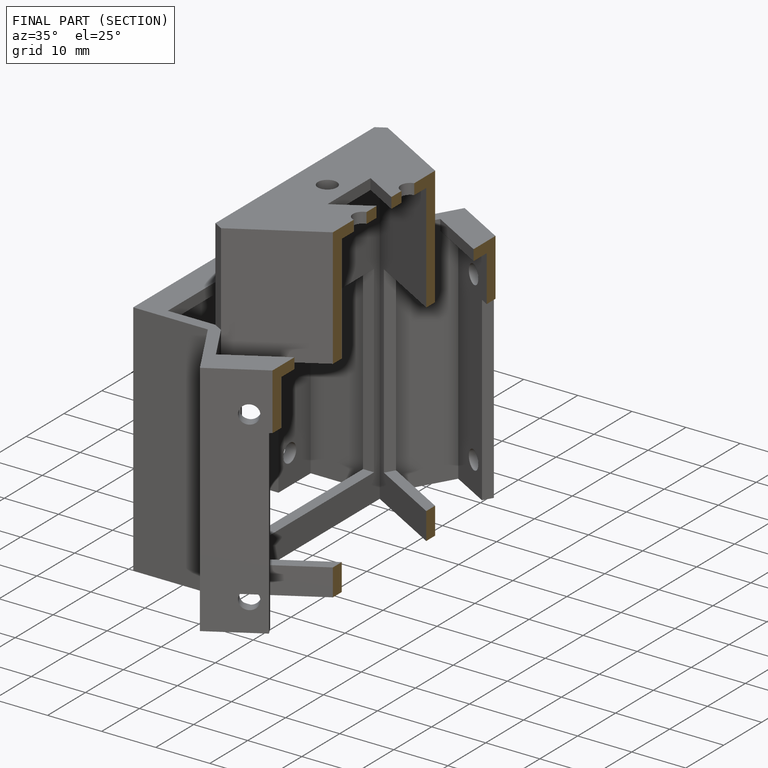
[diagram: finished part — half-section view (interior)]
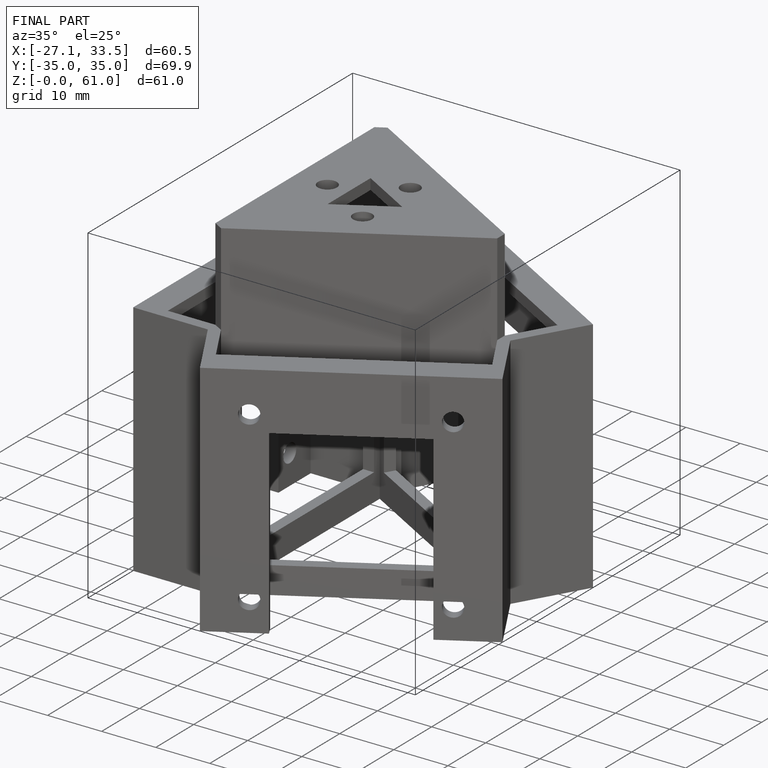
[diagram: finished part — iso view with bounding-box wireframe]
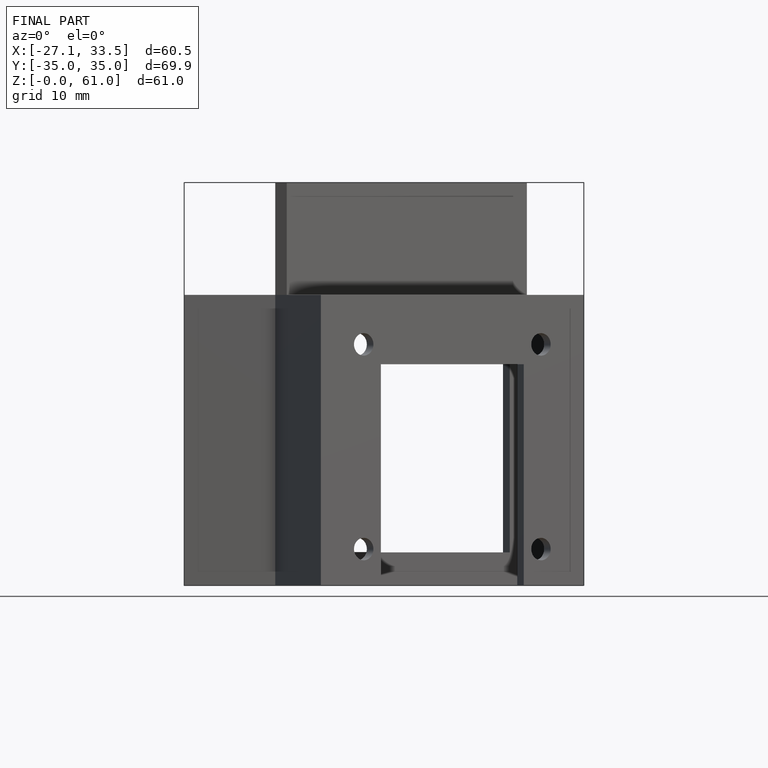
[diagram: finished part — front view with bounding-box wireframe]
